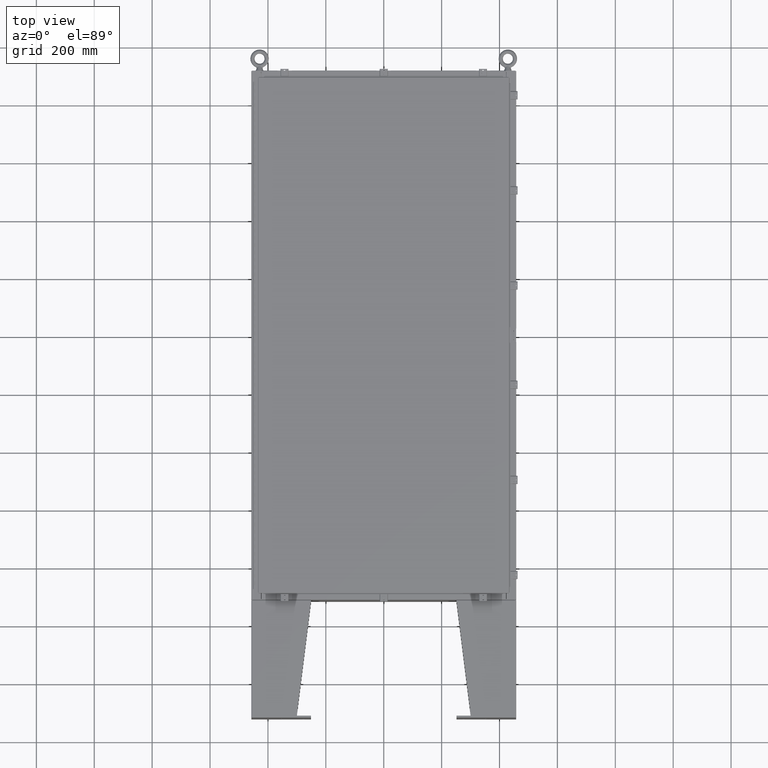
[diagram: clean part render]
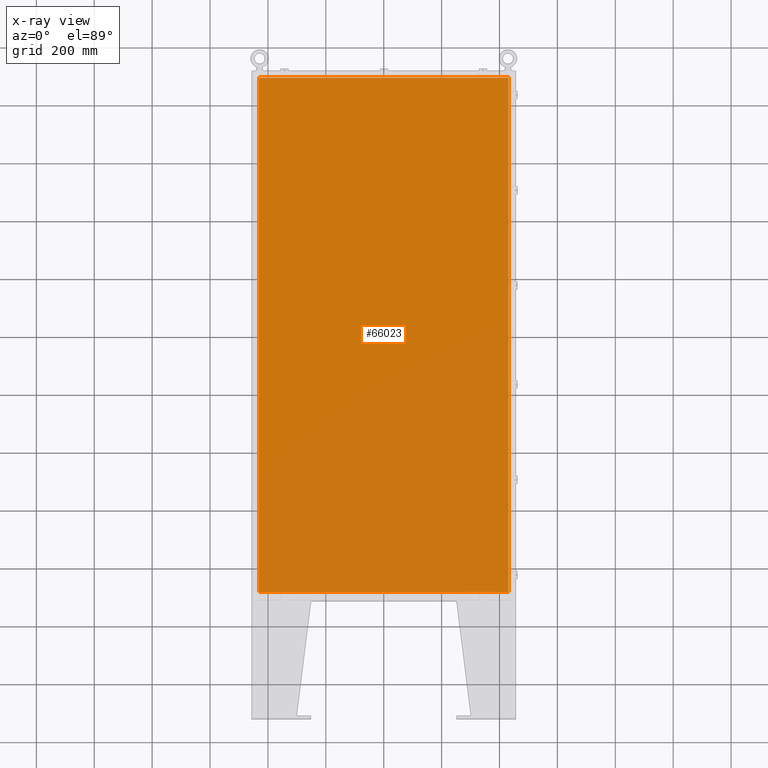
[diagram: x-ray — body ghosted, one internal face saturated and labeled with its STEP entity id]
A machine part, top view, then the same camera in x-ray: the body is ghosted and one INTERNAL B-rep face — a face not visible from any outside direction — is saturated and labeled: STEP entity #66023.
In plain terms, the highlighted planar face has unit normal (0, 0, -1).
Its self-contained STEP definition (entity closure, byte-faithful):
#1421 = VERTEX_POINT ( 'NONE', #2502 ) ;
#2502 = CARTESIAN_POINT ( 'NONE',  ( 16.99029999999999800, -35.00630000000001000, -0.07470000000000000300 ) ) ;
#3533 = DIRECTION ( 'NONE',  ( 1.000000000000000000, -0.0000000000000000000, -0.0000000000000000000 ) ) ;
#4971 = PLANE ( 'NONE',  #20614 ) ;
#9796 = CARTESIAN_POINT ( 'NONE',  ( 16.99029999999999800, 35.00630000000001000, -0.07469999999999804600 ) ) ;
#9968 = EDGE_CURVE ( 'NONE', #1421, #55844, #55259, .T. ) ;
#16916 = CARTESIAN_POINT ( 'NONE',  ( 0.0000000000000000000, 0.0000000000000000000, -0.07470000000000000300 ) ) ;
#17250 = LINE ( 'NONE', #9796, #76565 ) ;
#18340 = EDGE_CURVE ( 'NONE', #52209, #72279, #32968, .T. ) ;
#20614 = AXIS2_PLACEMENT_3D ( 'NONE', #16916, #58569, #22960 ) ;
#22960 = DIRECTION ( 'NONE',  ( -1.000000000000000000, 0.0000000000000000000, -0.0000000000000000000 ) ) ;
#23607 = LINE ( 'NONE', #74545, #70833 ) ;
#26679 = DIRECTION ( 'NONE',  ( 0.0000000000000000000, 1.000000000000000000, 0.0000000000000000000 ) ) ;
#26992 = ORIENTED_EDGE ( 'NONE', *, *, #9968, .F. ) ;
#28752 = DIRECTION ( 'NONE',  ( 0.0000000000000000000, -1.000000000000000000, 0.0000000000000000000 ) ) ;
#30427 = CARTESIAN_POINT ( 'NONE',  ( -16.99029999999999800, 35.00630000000000300, -0.07470000000000000300 ) ) ;
#32968 = LINE ( 'NONE', #59467, #46837 ) ;
#33344 = CARTESIAN_POINT ( 'NONE',  ( 16.99029999999999800, -35.00630000000000300, -0.07470000000000019700 ) ) ;
#34316 = ORIENTED_EDGE ( 'NONE', *, *, #18340, .F. ) ;
#40821 = EDGE_CURVE ( 'NONE', #55844, #52209, #17250, .T. ) ;
#40863 = ORIENTED_EDGE ( 'NONE', *, *, #49553, .F. ) ;
#43677 = EDGE_LOOP ( 'NONE', ( #26992, #40863, #34316, #54047 ) ) ;
#46837 = VECTOR ( 'NONE', #28752, 39.37007874015748100 ) ;
#49553 = EDGE_CURVE ( 'NONE', #72279, #1421, #23607, .T. ) ;
#52209 = VERTEX_POINT ( 'NONE', #30427 ) ;
#54047 = ORIENTED_EDGE ( 'NONE', *, *, #40821, .F. ) ;
#55259 = LINE ( 'NONE', #33344, #69055 ) ;
#55844 = VERTEX_POINT ( 'NONE', #74470 ) ;
#57528 = DIRECTION ( 'NONE',  ( -1.000000000000000000, -0.0000000000000000000, -0.0000000000000000000 ) ) ;
#58569 = DIRECTION ( 'NONE',  ( 0.0000000000000000000, 0.0000000000000000000, -1.000000000000000000 ) ) ;
#59467 = CARTESIAN_POINT ( 'NONE',  ( -16.99029999999999800, 35.00630000000000300, -0.07469999999999582500 ) ) ;
#64714 = CARTESIAN_POINT ( 'NONE',  ( -16.99030000000000500, -35.00630000000001000, -0.07470000000000000300 ) ) ;
#66023 = ADVANCED_FACE ( 'NONE', ( #73228 ), #4971, .T. ) ;
#69055 = VECTOR ( 'NONE', #26679, 39.37007874015748100 ) ;
#70833 = VECTOR ( 'NONE', #3533, 39.37007874015748100 ) ;
#72279 = VERTEX_POINT ( 'NONE', #64714 ) ;
#73228 = FACE_OUTER_BOUND ( 'NONE', #43677, .T. ) ;
#74470 = CARTESIAN_POINT ( 'NONE',  ( 16.99029999999999800, 35.00630000000000300, -0.07470000000000000300 ) ) ;
#74545 = CARTESIAN_POINT ( 'NONE',  ( -16.99030000000000500, -35.00630000000001000, -0.07469999999999804600 ) ) ;
#76565 = VECTOR ( 'NONE', #57528, 39.37007874015748100 ) ;